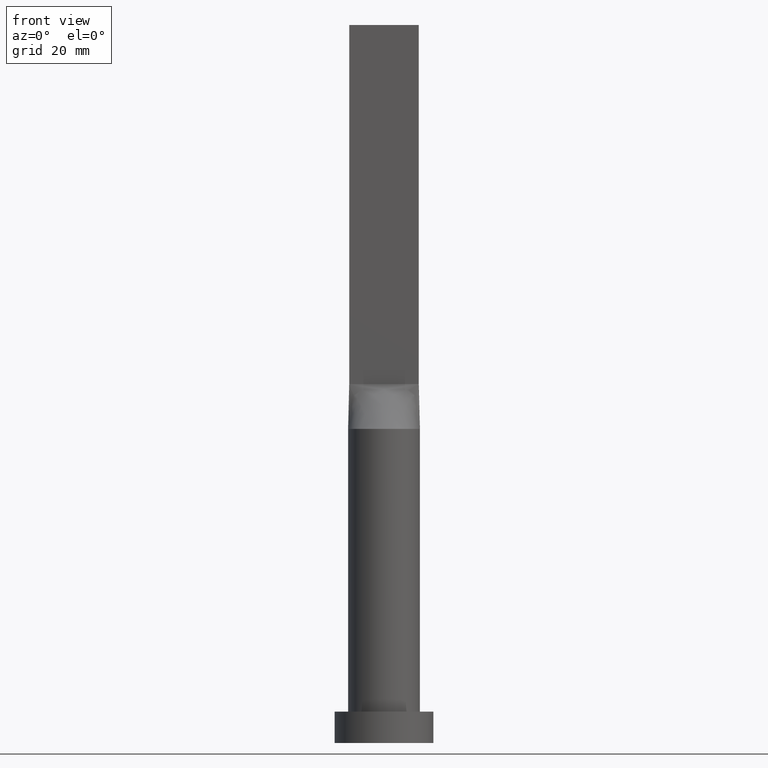
[diagram: clean part render]
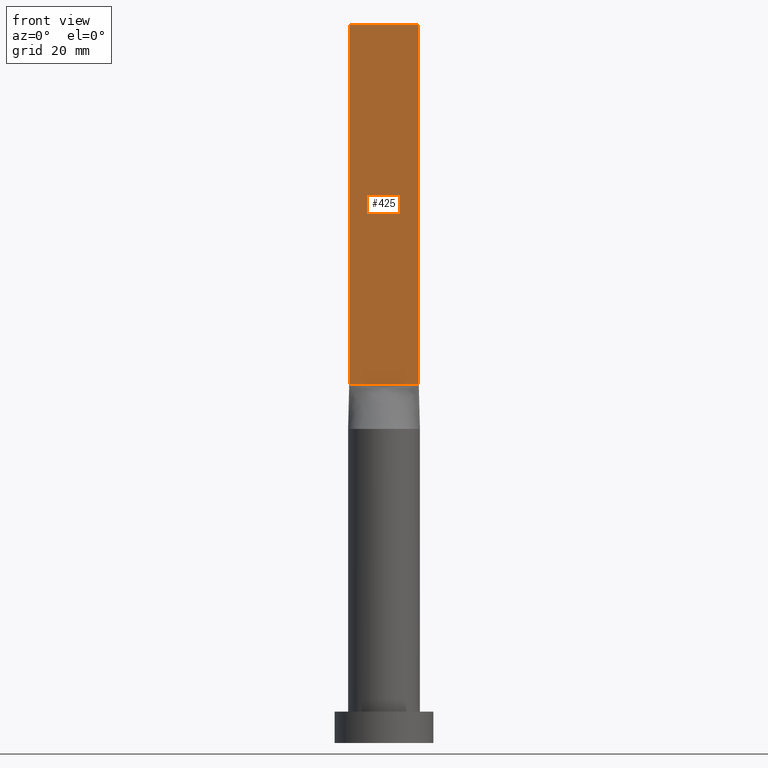
[diagram: same view with one face highlighted and labeled with its STEP entity id]
A machine part, front view. The second image highlights one B-rep face of the part: STEP entity #425.
In plain terms, the highlighted planar face has unit normal (0, 1, -0).
Its self-contained STEP definition (entity closure, byte-faithful):
#10 = DIRECTION ( 'NONE',  ( 6.994852725712931474E-17, 1.000000000000000000, -0.000000000000000000 ) ) ;
#11 = EDGE_CURVE ( 'NONE', #511, #586, #484, .T. ) ;
#63 = PLANE ( 'NONE',  #421 ) ;
#72 = ORIENTED_EDGE ( 'NONE', *, *, #392, .F. ) ;
#88 = LINE ( 'NONE', #287, #506 ) ;
#116 = CARTESIAN_POINT ( 'NONE',  ( -7.750000000000000000, -0.9999999999999986677, 160.0000000000000000 ) ) ;
#178 = CARTESIAN_POINT ( 'NONE',  ( 7.750000000000000000, -0.9999999999999997780, 160.0000000000000000 ) ) ;
#190 = CARTESIAN_POINT ( 'NONE',  ( -7.750000000000000000, -0.9999999999999986677, 80.00000000000000000 ) ) ;
#201 = ORIENTED_EDGE ( 'NONE', *, *, #240, .T. ) ;
#205 = CARTESIAN_POINT ( 'NONE',  ( -7.750000000000000000, -0.9999999999999986677, 160.0000000000000000 ) ) ;
#215 = DIRECTION ( 'NONE',  ( -1.000000000000000000, 6.994852725712931474E-17, 0.000000000000000000 ) ) ;
#217 = DIRECTION ( 'NONE',  ( -0.000000000000000000, -0.000000000000000000, -1.000000000000000000 ) ) ;
#240 = EDGE_CURVE ( 'NONE', #486, #586, #243, .T. ) ;
#243 = LINE ( 'NONE', #190, #298 ) ;
#287 = CARTESIAN_POINT ( 'NONE',  ( -7.750000000000000000, -0.9999999999999986677, 160.0000000000000000 ) ) ;
#298 = VECTOR ( 'NONE', #384, 1000.000000000000000 ) ;
#318 = EDGE_LOOP ( 'NONE', ( #201, #600, #72, #413 ) ) ;
#329 = LINE ( 'NONE', #116, #383 ) ;
#365 = CARTESIAN_POINT ( 'NONE',  ( 7.750000000000000000, -0.9999999999999997780, 80.00000000000000000 ) ) ;
#366 = CARTESIAN_POINT ( 'NONE',  ( 7.750000000000000000, -0.9999999999999997780, 160.0000000000000000 ) ) ;
#383 = VECTOR ( 'NONE', #521, 1000.000000000000000 ) ;
#384 = DIRECTION ( 'NONE',  ( 1.000000000000000000, -6.994852725712931474E-17, 0.000000000000000000 ) ) ;
#392 = EDGE_CURVE ( 'NONE', #417, #511, #88, .T. ) ;
#413 = ORIENTED_EDGE ( 'NONE', *, *, #592, .T. ) ;
#414 = FACE_OUTER_BOUND ( 'NONE', #318, .T. ) ;
#417 = VERTEX_POINT ( 'NONE', #205 ) ;
#421 = AXIS2_PLACEMENT_3D ( 'NONE', #457, #10, #215 ) ;
#425 = ADVANCED_FACE ( 'NONE', ( #414 ), #63, .F. ) ;
#457 = CARTESIAN_POINT ( 'NONE',  ( -7.750000000000000000, -0.9999999999999986677, 160.0000000000000000 ) ) ;
#484 = LINE ( 'NONE', #366, #580 ) ;
#486 = VERTEX_POINT ( 'NONE', #567 ) ;
#506 = VECTOR ( 'NONE', #583, 1000.000000000000000 ) ;
#511 = VERTEX_POINT ( 'NONE', #178 ) ;
#521 = DIRECTION ( 'NONE',  ( -0.000000000000000000, -0.000000000000000000, -1.000000000000000000 ) ) ;
#567 = CARTESIAN_POINT ( 'NONE',  ( -7.750000000000000000, -0.9999999999999986677, 80.00000000000000000 ) ) ;
#580 = VECTOR ( 'NONE', #217, 1000.000000000000000 ) ;
#583 = DIRECTION ( 'NONE',  ( 1.000000000000000000, -6.994852725712931474E-17, 0.000000000000000000 ) ) ;
#586 = VERTEX_POINT ( 'NONE', #365 ) ;
#592 = EDGE_CURVE ( 'NONE', #417, #486, #329, .T. ) ;
#600 = ORIENTED_EDGE ( 'NONE', *, *, #11, .F. ) ;